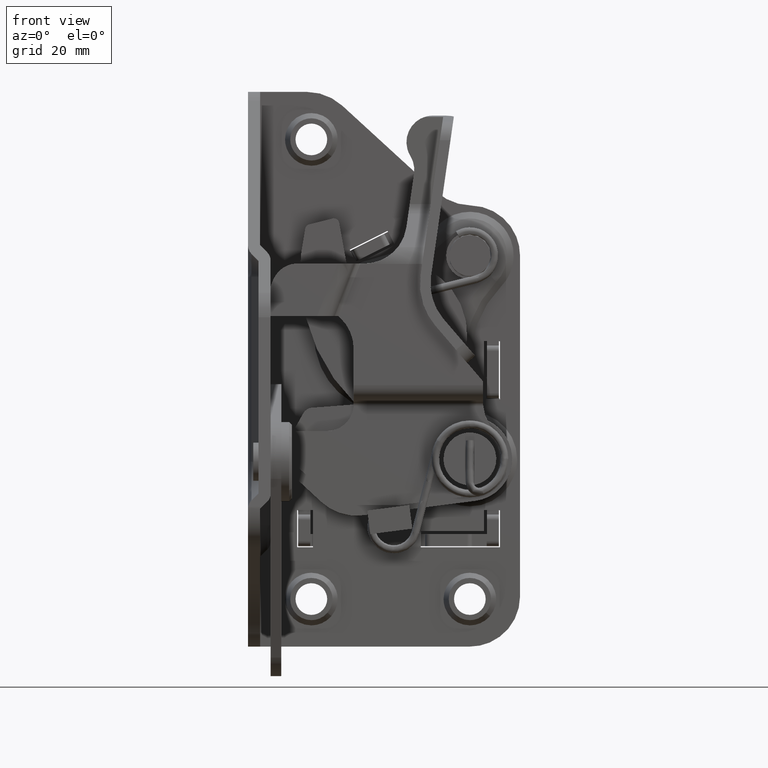
[diagram: clean part render]
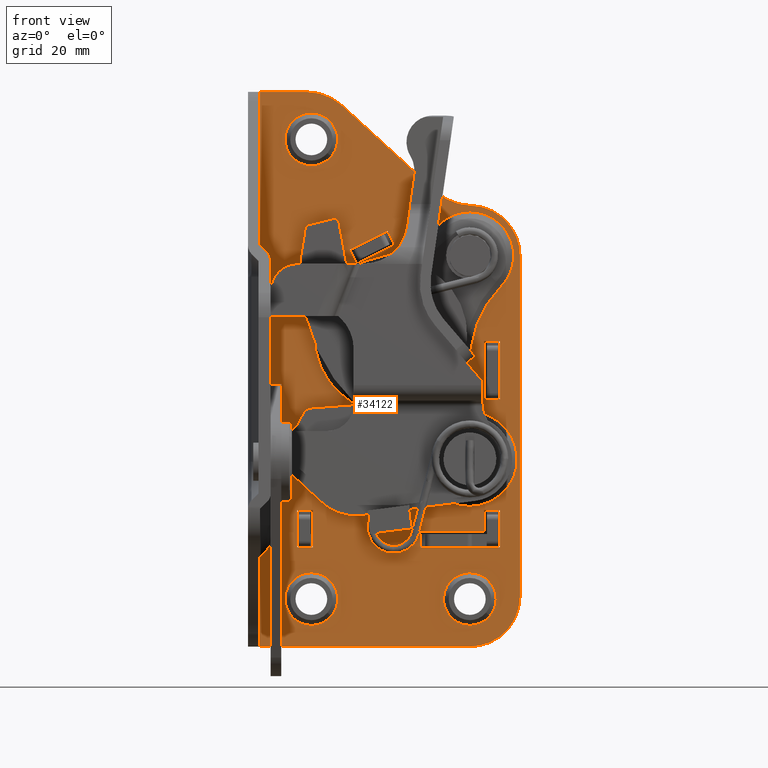
[diagram: same view with one face highlighted and labeled with its STEP entity id]
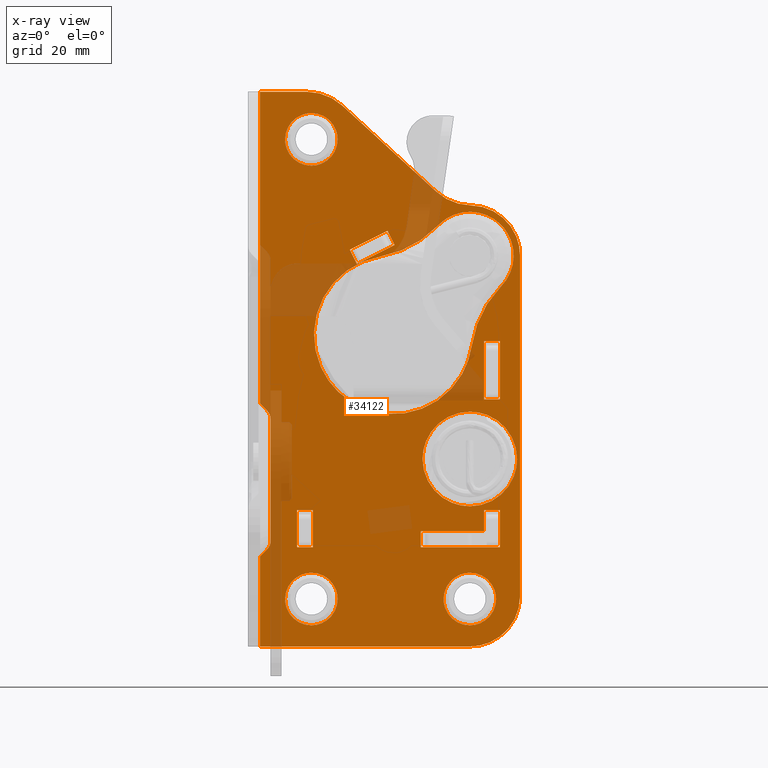
[diagram: x-ray of the same camera — body ghosted, the highlighted face saturated]
A machine part, front view. The second image highlights one B-rep face of the part: STEP entity #34122.
The next image is the same camera in x-ray: the body ghosted, the highlighted face saturated — about 14% of this face is hidden behind the body in this view.
In plain terms, the highlighted face is a freeform B-spline surface patch.
Its self-contained STEP definition (entity closure, byte-faithful):
#26168=CARTESIAN_POINT('',(45.803675712499100,32.700000133929180,-29.216783649812889));
#26169=VERTEX_POINT('',#26168);
#26170=CARTESIAN_POINT('',(42.0,32.700000000000003,-30.981530098638189));
#26171=VERTEX_POINT('',#26170);
#26172=CARTESIAN_POINT('',(45.803675712499100,32.700000133929180,-29.216783649812889));
#26173=CARTESIAN_POINT('',(45.585367185425511,32.700000126242472,-29.474989146325949));
#26174=CARTESIAN_POINT('',(45.112203179805157,32.700000109582056,-29.930926170484430));
#26175=CARTESIAN_POINT('',(44.178236543818812,32.700000076696803,-30.529964767974921));
#26176=CARTESIAN_POINT('',(43.127091933805872,32.700000039685300,-30.900996817832141));
#26177=CARTESIAN_POINT('',(42.338117365075568,32.700000011905367,-30.981558451182750));
#26178=CARTESIAN_POINT('',(42.0,32.700000000000003,-30.981530098638189));
#26179=B_SPLINE_CURVE_WITH_KNOTS('',3,(#26172,#26173,#26174,#26175,#26176,#26177,#26178),.UNSPECIFIED.,.F.,.U.,(4,1,1,1,4),(0.000000044488297,1.014373538515124,1.961129885248130,3.313622247864266,4.327994831061626),.UNSPECIFIED.);
#26180=EDGE_CURVE('',#26169,#26171,#26179,.T.);
#26242=CARTESIAN_POINT('',(45.429058767845873,32.699999864371819,-22.386526022023642));
#26243=VERTEX_POINT('',#26242);
#26249=CARTESIAN_POINT('',(42.0,32.700000000000003,-21.018469901361811));
#26250=VERTEX_POINT('',#26249);
#26251=CARTESIAN_POINT('',(42.0,32.700000000000003,-21.018469901361811));
#26252=CARTESIAN_POINT('',(42.433379419718513,32.699999982858671,-21.018329021031981));
#26253=CARTESIAN_POINT('',(43.240921774145193,32.699999950918397,-21.124550071019470));
#26254=CARTESIAN_POINT('',(44.422123737876497,32.699999904198663,-21.587641122557020));
#26255=CARTESIAN_POINT('',(45.100502955687062,32.699999877367127,-22.074545540828201));
#26256=CARTESIAN_POINT('',(45.429058767845873,32.699999864371819,-22.386526022023642));
#26257=B_SPLINE_CURVE_WITH_KNOTS('',3,(#26251,#26252,#26253,#26254,#26255,#26256),.UNSPECIFIED.,.F.,.U.,(4,1,1,4),(0.000000033462431,1.300095591702509,2.422892436445387,3.782090463981278),.UNSPECIFIED.);
#26258=EDGE_CURVE('',#26250,#26243,#26257,.T.);
#26260=CARTESIAN_POINT('',(37.018469901361982,32.700000000000003,-25.999998745401211));
#26261=VERTEX_POINT('',#26260);
#26262=CARTESIAN_POINT('',(37.018469901361982,32.700000000000003,-25.999998745401211));
#26263=CARTESIAN_POINT('',(37.018453731910398,32.700000000000017,-25.714722245184198));
#26264=CARTESIAN_POINT('',(37.071115431025142,32.699999999999953,-25.103405105511531));
#26265=CARTESIAN_POINT('',(37.349525077328842,32.700000000000088,-24.096902972908701));
#26266=CARTESIAN_POINT('',(37.829599279495604,32.700000000000017,-23.211924797194708));
#26267=CARTESIAN_POINT('',(38.513731015672640,32.699999999999832,-22.398939758205358));
#26268=CARTESIAN_POINT('',(39.374338448923183,32.700000000000372,-21.701238389639190));
#26269=CARTESIAN_POINT('',(40.594011967555922,32.699999999999513,-21.151686047796701));
#26270=CARTESIAN_POINT('',(41.531304386877693,32.700000000000472,-21.018310579308341));
#26271=CARTESIAN_POINT('',(42.0,32.700000000000003,-21.018469901361811));
#26272=B_SPLINE_CURVE_WITH_KNOTS('',3,(#26262,#26263,#26264,#26265,#26266,#26267,#26268,#26269,#26270,#26271),.UNSPECIFIED.,.F.,.U.,(4,1,1,1,1,1,1,4),(0.000000144365693,0.855834299658311,1.833987448148084,3.117787964375352,3.851419004544336,5.012897000612857,6.418963985169182,7.825017572012698),.UNSPECIFIED.);
#26273=EDGE_CURVE('',#26261,#26250,#26272,.T.);
#26275=CARTESIAN_POINT('',(42.0,32.700000000000003,-30.981530098638189));
#26276=CARTESIAN_POINT('',(41.653590521918247,32.699999999999932,-30.981556772521770));
#26277=CARTESIAN_POINT('',(40.858853240219297,32.700000000000173,-30.898401711259680));
#26278=CARTESIAN_POINT('',(39.716479735800263,32.699999999999811,-30.489737856814049));
#26279=CARTESIAN_POINT('',(38.717672040792209,32.700000000000223,-29.804321618009471));
#26280=CARTESIAN_POINT('',(37.914216680359608,32.699999999999953,-28.928742482919141));
#26281=CARTESIAN_POINT('',(37.353170088414863,32.700000000000067,-27.924154854828821));
#26282=CARTESIAN_POINT('',(37.068940477822160,32.700000000000053,-26.896610863818790));
#26283=CARTESIAN_POINT('',(37.018463410206230,32.700000000000003,-26.264903588204820));
#26284=CARTESIAN_POINT('',(37.018469901361982,32.700000000000003,-25.999998745401211));
#26285=B_SPLINE_CURVE_WITH_KNOTS('',3,(#26275,#26276,#26277,#26278,#26279,#26280,#26281,#26282,#26283,#26284),.UNSPECIFIED.,.F.,.U.,(4,1,1,1,1,1,1,4),(0.000000143939944,1.039242002116160,2.384196129396056,3.606862696073036,4.646074926225090,5.929898098263977,7.030292976566042,7.825018986246805),.UNSPECIFIED.);
#26286=EDGE_CURVE('',#26171,#26261,#26285,.T.);
#26305=CARTESIAN_POINT('',(46.981530098638039,32.700000000000003,-26.000001254598779));
#26306=VERTEX_POINT('',#26305);
#26307=CARTESIAN_POINT('',(46.981530098638039,32.700000000000003,-26.000001254598779));
#26308=CARTESIAN_POINT('',(46.981930035082272,32.700000023510412,-26.564685663894839));
#26309=CARTESIAN_POINT('',(46.781042082226001,32.700000072028232,-27.730020028910729));
#26310=CARTESIAN_POINT('',(46.192251675813097,32.700000114834367,-28.758147878848501));
#26311=CARTESIAN_POINT('',(45.803675712499100,32.700000133929180,-29.216783649812889));
#26312=B_SPLINE_CURVE_WITH_KNOTS('',3,(#26307,#26308,#26309,#26310,#26311),.UNSPECIFIED.,.F.,.U.,(4,1,4),(0.000000028836222,1.693892764226169,3.497024157840460),.UNSPECIFIED.);
#26313=EDGE_CURVE('',#26306,#26169,#26312,.T.);
#26315=CARTESIAN_POINT('',(45.429058767845873,32.699999864371819,-22.386526022023642));
#26316=CARTESIAN_POINT('',(45.857156002656893,32.699999879593499,-22.792070452302291));
#26317=CARTESIAN_POINT('',(46.363295258018887,32.699999905480517,-23.481765881191880));
#26318=CARTESIAN_POINT('',(46.865120722946088,32.699999952584839,-24.736739997920370));
#26319=CARTESIAN_POINT('',(46.981797628276887,32.699999981030217,-25.494599361561988));
#26320=CARTESIAN_POINT('',(46.981530098638039,32.700000000000003,-26.000001254598779));
#26321=B_SPLINE_CURVE_WITH_KNOTS('',3,(#26315,#26316,#26317,#26318,#26319,#26320),.UNSPECIFIED.,.F.,.U.,(4,1,1,4),(0.000000041197973,1.768800925075114,2.526829929305881,4.042928925841842),.UNSPECIFIED.);
#26322=EDGE_CURVE('',#26243,#26306,#26321,.T.);
#26374=CARTESIAN_POINT('',(15.803675712498791,32.700000133929180,-29.216783649812889));
#26375=VERTEX_POINT('',#26374);
#26376=CARTESIAN_POINT('',(11.999999999999700,32.700000000000003,-30.981530098638189));
#26377=VERTEX_POINT('',#26376);
#26378=CARTESIAN_POINT('',(15.803675712498791,32.700000133929180,-29.216783649812889));
#26379=CARTESIAN_POINT('',(15.483605854358210,32.700000122659418,-29.595608534268809));
#26380=CARTESIAN_POINT('',(14.831880446095600,32.700000099711822,-30.166077240277890));
#26381=CARTESIAN_POINT('',(13.532540432128879,32.700000053961467,-30.812415234538491));
#26382=CARTESIAN_POINT('',(12.586153659762291,32.700000020638832,-30.981984851955101));
#26383=CARTESIAN_POINT('',(11.999999999999700,32.700000000000003,-30.981530098638189));
#26384=B_SPLINE_CURVE_WITH_KNOTS('',3,(#26378,#26379,#26380,#26381,#26382,#26383),.UNSPECIFIED.,.F.,.U.,(4,1,1,4),(0.000000044489448,1.487750059900769,2.569739183424362,4.327994831061585),.UNSPECIFIED.);
#26385=EDGE_CURVE('',#26375,#26377,#26384,.T.);
#26445=CARTESIAN_POINT('',(15.429058767845561,32.699999864371819,-22.386526022023642));
#26446=VERTEX_POINT('',#26445);
#26452=CARTESIAN_POINT('',(11.999999999999700,32.700000000000003,-21.018469901361811));
#26453=VERTEX_POINT('',#26452);
#26454=CARTESIAN_POINT('',(11.999999999999700,32.700000000000003,-21.018469901361811));
#26455=CARTESIAN_POINT('',(12.433373752879170,32.699999982858998,-21.018336322764689));
#26456=CARTESIAN_POINT('',(13.201537086107370,32.699999952475942,-21.119373145146849));
#26457=CARTESIAN_POINT('',(14.386622389682209,32.699999905603143,-21.567891071315341));
#26458=CARTESIAN_POINT('',(15.071984910617161,32.699999878494758,-22.047343919965559));
#26459=CARTESIAN_POINT('',(15.429058767845561,32.699999864371819,-22.386526022023642));
#26460=B_SPLINE_CURVE_WITH_KNOTS('',3,(#26454,#26455,#26456,#26457,#26458,#26459),.UNSPECIFIED.,.F.,.U.,(4,1,1,4),(0.000000033462609,1.300095591702602,2.304704259591208,3.782090463981276),.UNSPECIFIED.);
#26461=EDGE_CURVE('',#26453,#26446,#26460,.T.);
#26463=CARTESIAN_POINT('',(7.018469901361669,32.700000000000003,-25.999998745401211));
#26464=VERTEX_POINT('',#26463);
#26465=CARTESIAN_POINT('',(7.018469901361669,32.700000000000003,-25.999998745401211));
#26466=CARTESIAN_POINT('',(7.018359724292156,32.700000000000017,-25.592439075799881));
#26467=CARTESIAN_POINT('',(7.103996448899220,32.699999999999903,-24.899659566043109));
#26468=CARTESIAN_POINT('',(7.416745290640604,32.700000000000152,-23.990670239616438));
#26469=CARTESIAN_POINT('',(7.894223081297970,32.699999999999612,-23.110086673535179));
#26470=CARTESIAN_POINT('',(8.606102111681272,32.700000000000841,-22.284845092908419));
#26471=CARTESIAN_POINT('',(9.511336197302112,32.699999999998759,-21.647462836563161));
#26472=CARTESIAN_POINT('',(10.614524614063759,32.700000000000827,-21.158322240589278));
#26473=CARTESIAN_POINT('',(11.449760685789769,32.699999999999562,-21.018155759461070));
#26474=CARTESIAN_POINT('',(11.999999999999700,32.700000000000003,-21.018469901361811));
#26475=B_SPLINE_CURVE_WITH_KNOTS('',3,(#26465,#26466,#26467,#26468,#26469,#26470,#26471,#26472,#26473,#26474),.UNSPECIFIED.,.F.,.U.,(4,1,1,1,1,1,1,4),(0.000000144368264,1.222652087379938,2.078523668821425,2.873272494625561,4.218157759474492,5.318562443777475,6.174436009217033,7.825017572012708),.UNSPECIFIED.);
#26476=EDGE_CURVE('',#26464,#26453,#26475,.T.);
#26478=CARTESIAN_POINT('',(11.999999999999700,32.700000000000003,-30.981530098638189));
#26479=CARTESIAN_POINT('',(11.612827861504501,32.699999999999910,-30.981607409416331));
#26480=CARTESIAN_POINT('',(10.940407528498890,32.700000000000188,-30.902726478687729));
#26481=CARTESIAN_POINT('',(9.949939529242961,32.699999999999953,-30.575542235035719));
#26482=CARTESIAN_POINT('',(9.182873871737785,32.700000000000003,-30.141010304889551));
#26483=CARTESIAN_POINT('',(8.491731360564989,32.700000000000180,-29.566617155777891));
#26484=CARTESIAN_POINT('',(7.953274500503800,32.699999999999953,-28.950103199105889));
#26485=CARTESIAN_POINT('',(7.501149058970652,32.700000000000031,-28.195759339964329));
#26486=CARTESIAN_POINT('',(7.125705098864302,32.700000000000010,-27.222559048872149));
#26487=CARTESIAN_POINT('',(7.018281367058362,32.700000000000060,-26.468705351504170));
#26488=CARTESIAN_POINT('',(7.018469901361669,32.700000000000003,-25.999998745401211));
#26489=B_SPLINE_CURVE_WITH_KNOTS('',3,(#26478,#26479,#26480,#26481,#26482,#26483,#26484,#26485,#26486,#26487,#26488),.UNSPECIFIED.,.F.,.U.,(4,1,1,1,1,1,1,1,4),(0.000000143930279,1.161506399609530,2.017388230116644,3.117788528373086,3.790277319667224,4.707235575443102,5.563091425792234,6.418965145808880,7.825018986246803),.UNSPECIFIED.);
#26490=EDGE_CURVE('',#26377,#26464,#26489,.T.);
#26509=CARTESIAN_POINT('',(16.981530098637730,32.700000000000003,-26.000001254598779));
#26510=VERTEX_POINT('',#26509);
#26511=CARTESIAN_POINT('',(16.981530098637730,32.700000000000003,-26.000001254598779));
#26512=CARTESIAN_POINT('',(16.981622910261390,32.700000016683212,-26.400707880549870));
#26513=CARTESIAN_POINT('',(16.882126850954240,32.700000050806253,-27.220291784480949));
#26514=CARTESIAN_POINT('',(16.460093975252288,32.700000096459782,-28.316824335563830));
#26515=CARTESIAN_POINT('',(16.027161232596651,32.700000122928877,-28.952571847392200));
#26516=CARTESIAN_POINT('',(15.803675712498791,32.700000133929180,-29.216783649812889));
#26517=B_SPLINE_CURVE_WITH_KNOTS('',3,(#26511,#26512,#26513,#26514,#26515,#26516),.UNSPECIFIED.,.F.,.U.,(4,1,1,4),(0.000000028835064,1.202109432815635,2.458843423872564,3.497024157840481),.UNSPECIFIED.);
#26518=EDGE_CURVE('',#26510,#26375,#26517,.T.);
#26520=CARTESIAN_POINT('',(15.429058767845561,32.699999864371819,-22.386526022023642));
#26521=CARTESIAN_POINT('',(15.734639232285250,32.699999875249397,-22.676333764391210));
#26522=CARTESIAN_POINT('',(16.190929224647618,32.699999896235873,-23.235463329357710));
#26523=CARTESIAN_POINT('',(16.611492298993081,32.699999927375607,-24.065105913496161));
#26524=CARTESIAN_POINT('',(16.900922565538419,32.699999960484568,-24.947208933395000));
#26525=CARTESIAN_POINT('',(16.981647998853330,32.699999984192402,-25.578848319185258));
#26526=CARTESIAN_POINT('',(16.981530098637730,32.700000000000003,-26.000001254598779));
#26527=B_SPLINE_CURVE_WITH_KNOTS('',3,(#26520,#26521,#26522,#26523,#26524,#26525,#26526),.UNSPECIFIED.,.F.,.U.,(4,1,1,1,4),(0.000000041196127,1.263421896601126,2.147789031464082,2.779507070403738,4.042928925841798),.UNSPECIFIED.);
#26528=EDGE_CURVE('',#26446,#26510,#26527,.T.);
#26582=CARTESIAN_POINT('',(15.803675712498800,32.700000133929180,57.783216350187097));
#26583=VERTEX_POINT('',#26582);
#26584=CARTESIAN_POINT('',(11.999999999999700,32.700000000000003,56.018469901361797));
#26585=VERTEX_POINT('',#26584);
#26586=CARTESIAN_POINT('',(15.803675712498800,32.700000133929180,57.783216350187097));
#26587=CARTESIAN_POINT('',(15.585360792732770,32.700000126242209,57.525022273789283));
#26588=CARTESIAN_POINT('',(15.046989217703301,32.700000107285859,57.006110393254943));
#26589=CARTESIAN_POINT('',(14.133166192209940,32.700000075109919,56.454576742197453));
#26590=CARTESIAN_POINT('',(13.081968581205111,32.700000038096547,56.099505087354437));
#26591=CARTESIAN_POINT('',(12.383208176818220,32.700000013492946,56.018402460610041));
#26592=CARTESIAN_POINT('',(11.999999999999700,32.700000000000003,56.018469901361797));
#26593=B_SPLINE_CURVE_WITH_KNOTS('',3,(#26586,#26587,#26588,#26589,#26590,#26591,#26592),.UNSPECIFIED.,.F.,.U.,(4,1,1,1,4),(0.000000044486766,1.014373538513840,2.231601247336667,3.178370043205631,4.327994831061635),.UNSPECIFIED.);
#26594=EDGE_CURVE('',#26583,#26585,#26593,.T.);
#26656=CARTESIAN_POINT('',(15.429058767845561,32.699999864371819,64.613473977976355));
#26657=VERTEX_POINT('',#26656);
#26663=CARTESIAN_POINT('',(11.999999999999700,32.700000000000003,65.981530098638189));
#26664=VERTEX_POINT('',#26663);
#26665=CARTESIAN_POINT('',(11.999999999999700,32.700000000000003,65.981530098638189));
#26666=CARTESIAN_POINT('',(12.433377738699720,32.699999982858770,65.981673637271072));
#26667=CARTESIAN_POINT('',(13.162125200840610,32.699999954035000,65.885765200351855));
#26668=CARTESIAN_POINT('',(14.351173536802721,32.699999907004830,65.451917048968866));
#26669=CARTESIAN_POINT('',(15.043422026701389,32.699999879624961,64.979799053138095));
#26670=CARTESIAN_POINT('',(15.429058767845561,32.699999864371819,64.613473977976355));
#26671=B_SPLINE_CURVE_WITH_KNOTS('',3,(#26665,#26666,#26667,#26668,#26669,#26670),.UNSPECIFIED.,.F.,.U.,(4,1,1,4),(0.000000033466002,1.300095591704739,2.186519639660140,3.782090463981223),.UNSPECIFIED.);
#26672=EDGE_CURVE('',#26664,#26657,#26671,.T.);
#26674=CARTESIAN_POINT('',(7.018469901361669,32.700000000000003,61.000001254598779));
#26675=VERTEX_POINT('',#26674);
#26676=CARTESIAN_POINT('',(7.018469901361669,32.700000000000003,61.000001254598779));
#26677=CARTESIAN_POINT('',(7.018150844921873,32.699999999999953,61.550253224624122));
#26678=CARTESIAN_POINT('',(7.158367773900129,32.700000000000102,62.385434868259090));
#26679=CARTESIAN_POINT('',(7.680527363448568,32.699999999999847,63.563548388125533));
#26680=CARTESIAN_POINT('',(8.293032025969776,32.700000000000209,64.389309427621200));
#26681=CARTESIAN_POINT('',(9.175818635018320,32.700000000000102,65.150832881611379));
#26682=CARTESIAN_POINT('',(10.078848570364570,32.699999999999299,65.640670292119680));
#26683=CARTESIAN_POINT('',(11.083033105616661,32.700000000001083,65.925080335881731));
#26684=CARTESIAN_POINT('',(11.694341510264390,32.699999999999079,65.981562185250624));
#26685=CARTESIAN_POINT('',(11.999999999999700,32.700000000000003,65.981530098638189));
#26686=B_SPLINE_CURVE_WITH_KNOTS('',3,(#26676,#26677,#26678,#26679,#26680,#26681,#26682,#26683,#26684,#26685),.UNSPECIFIED.,.F.,.U.,(4,1,1,1,1,1,1,4),(0.000000144388496,1.650583046908661,2.506458869292059,3.851419004555456,4.707234723206547,5.991031521286375,6.908042534302139,7.825017572012709),.UNSPECIFIED.);
#26687=EDGE_CURVE('',#26675,#26664,#26686,.T.);
#26689=CARTESIAN_POINT('',(11.999999999999700,32.700000000000003,56.018469901361797));
#26690=CARTESIAN_POINT('',(11.694338058454511,32.699999999999818,56.018445098425573));
#26691=CARTESIAN_POINT('',(11.083026424526460,32.700000000000273,56.074911343446857));
#26692=CARTESIAN_POINT('',(10.078853939398330,32.700000000000031,56.359351159981912));
#26693=CARTESIAN_POINT('',(9.013179390813454,32.699999999999989,56.937261569956163));
#26694=CARTESIAN_POINT('',(8.183361883674706,32.700000000000060,57.737119540156698));
#26695=CARTESIAN_POINT('',(7.627284403496834,32.699999999999797,58.569709725142559));
#26696=CARTESIAN_POINT('',(7.167139324266114,32.700000000000159,59.573792061376302));
#26697=CARTESIAN_POINT('',(7.018089875873552,32.699999999999918,60.429369696657922));
#26698=CARTESIAN_POINT('',(7.018469901361669,32.700000000000003,61.000001254598779));
#26699=B_SPLINE_CURVE_WITH_KNOTS('',3,(#26689,#26690,#26691,#26692,#26693,#26694,#26695,#26696,#26697,#26698),.UNSPECIFIED.,.F.,.U.,(4,1,1,1,1,1,1,4),(0.000000143937712,0.916988639924436,1.833987779271914,3.117788528376957,4.523818663656565,5.257418708203504,6.113298129996971,7.825018986246801),.UNSPECIFIED.);
#26700=EDGE_CURVE('',#26585,#26675,#26699,.T.);
#26719=CARTESIAN_POINT('',(16.981530098637730,32.700000000000003,60.999998745401207));
#26720=VERTEX_POINT('',#26719);
#26721=CARTESIAN_POINT('',(16.981530098637730,32.700000000000003,60.999998745401207));
#26722=CARTESIAN_POINT('',(16.981591262603679,32.700000015166609,60.635721118803943));
#26723=CARTESIAN_POINT('',(16.901283318700081,32.700000045497887,59.907203211054821));
#26724=CARTESIAN_POINT('',(16.522331463869211,32.700000091703572,58.797415766066521));
#26725=CARTESIAN_POINT('',(16.086063110121842,32.700000120035860,58.116911480650543));
#26726=CARTESIAN_POINT('',(15.803675712498800,32.700000133929180,57.783216350187097));
#26727=B_SPLINE_CURVE_WITH_KNOTS('',3,(#26721,#26722,#26723,#26724,#26725,#26726),.UNSPECIFIED.,.F.,.U.,(4,1,1,4),(0.000000028835788,1.092825392159555,2.185631479342040,3.497024157840480),.UNSPECIFIED.);
#26728=EDGE_CURVE('',#26720,#26583,#26727,.T.);
#26730=CARTESIAN_POINT('',(15.429058767845561,32.699999864371819,64.613473977976355));
#26731=CARTESIAN_POINT('',(15.811137823019820,32.699999877965773,64.251296497809221));
#26732=CARTESIAN_POINT('',(16.380797328016168,32.699999905943613,63.505896832055207));
#26733=CARTESIAN_POINT('',(16.876792982788849,32.699999953371382,62.242303323532710));
#26734=CARTESIAN_POINT('',(16.981625642896191,32.699999984192651,61.421144303731253));
#26735=CARTESIAN_POINT('',(16.981530098637730,32.700000000000003,60.999998745401207));
#26736=B_SPLINE_CURVE_WITH_KNOTS('',3,(#26730,#26731,#26732,#26733,#26734,#26735),.UNSPECIFIED.,.F.,.U.,(4,1,1,4),(0.000000041200985,1.579282914204785,2.779507070404653,4.042928925841799),.UNSPECIFIED.);
#26737=EDGE_CURVE('',#26657,#26720,#26736,.T.);
#26803=CARTESIAN_POINT('',(36.058206221423212,32.699999883143470,7.197110527336118));
#26804=VERTEX_POINT('',#26803);
#26810=CARTESIAN_POINT('',(33.047000000000061,32.700000000000003,0.499999058446561));
#26811=VERTEX_POINT('',#26810);
#26812=CARTESIAN_POINT('',(36.058206221423212,32.699999883143470,7.197110527336118));
#26813=CARTESIAN_POINT('',(35.674973441078947,32.699999889075251,6.857153561342829));
#26814=CARTESIAN_POINT('',(34.994348422620668,32.699999901590900,6.139885762453077));
#26815=CARTESIAN_POINT('',(34.131192035731722,32.699999923880007,4.862474106711806));
#26816=CARTESIAN_POINT('',(33.546964079551628,32.699999946553007,3.563064905744879));
#26817=CARTESIAN_POINT('',(33.144942456077182,32.699999972496890,2.076238926648626));
#26818=CARTESIAN_POINT('',(33.046918911154449,32.699999989685658,1.091105384132361));
#26819=CARTESIAN_POINT('',(33.047000000000061,32.700000000000003,0.499999058446561));
#26820=B_SPLINE_CURVE_WITH_KNOTS('',3,(#26812,#26813,#26814,#26815,#26816,#26817,#26818,#26819),.UNSPECIFIED.,.F.,.U.,(4,1,1,1,1,4),(0.000000024566722,1.536865973150703,2.955527839549237,4.610604600457920,5.792820687200086,7.566132415463979),.UNSPECIFIED.);
#26821=EDGE_CURVE('',#26804,#26811,#26820,.T.);
#26823=CARTESIAN_POINT('',(35.302888948173234,32.700000116856472,-5.441794243914066));
#26824=VERTEX_POINT('',#26823);
#26825=CARTESIAN_POINT('',(33.047000000000061,32.700000000000003,0.499999058446561));
#26826=CARTESIAN_POINT('',(33.046898250960972,32.700000011979668,-0.109129987611610));
#26827=CARTESIAN_POINT('',(33.147569265287991,32.700000031279153,-1.090448093556359));
#26828=CARTESIAN_POINT('',(33.504734195491046,32.700000057010293,-2.398799716797465));
#26829=CARTESIAN_POINT('',(34.099309487130760,32.700000085368231,-3.840715200812121));
#26830=CARTESIAN_POINT('',(34.763672112740537,32.700000104911410,-4.834422696828148));
#26831=CARTESIAN_POINT('',(35.302888948173234,32.700000116856472,-5.441794243914066));
#26832=B_SPLINE_CURVE_WITH_KNOTS('',3,(#26825,#26826,#26827,#26828,#26829,#26830,#26831),.UNSPECIFIED.,.F.,.U.,(4,1,1,1,4),(0.000000024520316,1.827367687496933,2.944101860561415,4.060809970177435,6.497296847635356),.UNSPECIFIED.);
#26833=EDGE_CURVE('',#26811,#26824,#26832,.T.);
#26878=CARTESIAN_POINT('',(42.0,32.700000000000003,-8.452999999999999));
#26879=VERTEX_POINT('',#26878);
#26880=CARTESIAN_POINT('',(35.302888948173234,32.700000116856472,-5.441794243914066));
#26881=CARTESIAN_POINT('',(35.616703254439393,32.700000111380803,-5.795536428032672));
#26882=CARTESIAN_POINT('',(36.329053632510671,32.700000098951172,-6.480533192393399));
#26883=CARTESIAN_POINT('',(37.699277195075517,32.700000075042389,-7.419705739593663));
#26884=CARTESIAN_POINT('',(39.596351579234977,32.700000041940832,-8.227998588796615));
#26885=CARTESIAN_POINT('',(41.133020873440401,32.700000015127713,-8.453336863849845));
#26886=CARTESIAN_POINT('',(42.0,32.700000000000003,-8.452999999999999));
#26887=B_SPLINE_CURVE_WITH_KNOTS('',3,(#26880,#26881,#26882,#26883,#26884,#26885,#26886),.UNSPECIFIED.,.F.,.U.,(4,1,1,1,4),(0.000000024551198,1.418642910815644,2.955527587490276,4.965266437230817,7.566131770164478),.UNSPECIFIED.);
#26888=EDGE_CURVE('',#26824,#26879,#26887,.T.);
#26890=CARTESIAN_POINT('',(50.952999999999953,32.700000000000003,0.500000941553445));
#26891=VERTEX_POINT('',#26890);
#26892=CARTESIAN_POINT('',(42.0,32.700000000000003,-8.452999999999999));
#26893=CARTESIAN_POINT('',(42.585977210510023,32.700000000000017,-8.453071176617190));
#26894=CARTESIAN_POINT('',(43.538147943711458,32.699999999999953,-8.359168736530526));
#26895=CARTESIAN_POINT('',(44.886413367293997,32.700000000000017,-8.003786160142241));
#26896=CARTESIAN_POINT('',(46.175684376779820,32.700000000000017,-7.469819089284344));
#26897=CARTESIAN_POINT('',(47.543706416155622,32.700000000000003,-6.603581254457767));
#26898=CARTESIAN_POINT('',(48.743010441484678,32.700000000000138,-5.461664446251858));
#26899=CARTESIAN_POINT('',(49.784893029114059,32.699999999999910,-4.038794319451052));
#26900=CARTESIAN_POINT('',(50.454010083699167,32.700000000000060,-2.601401060160188));
#26901=CARTESIAN_POINT('',(50.865058221242357,32.700000000000031,-1.001517256128895));
#26902=CARTESIAN_POINT('',(50.953057274112702,32.699999999999982,-0.049343985682003));
#26903=CARTESIAN_POINT('',(50.952999999999953,32.700000000000003,0.500000941553445));
#26904=B_SPLINE_CURVE_WITH_KNOTS('',3,(#26892,#26893,#26894,#26895,#26896,#26897,#26898,#26899,#26900,#26901,#26902,#26903),.UNSPECIFIED.,.F.,.U.,(4,1,1,1,1,1,1,1,1,4),(0.000000091186566,1.757923314793382,2.856632745474443,4.175088281796310,5.933036807035915,7.690932179709000,9.119233490671682,11.206800155714420,12.415393610661850,14.063428285961770),.UNSPECIFIED.);
#26905=EDGE_CURVE('',#26879,#26891,#26904,.T.);
#26907=CARTESIAN_POINT('',(42.0,32.700000000000003,9.452999999999999));
#26908=VERTEX_POINT('',#26907);
#26909=CARTESIAN_POINT('',(50.952999999999953,32.700000000000003,0.500000941553445));
#26910=CARTESIAN_POINT('',(50.953326690847447,32.700000000000173,1.342360461836403));
#26911=CARTESIAN_POINT('',(50.744688329790939,32.699999999999712,2.807131952090734));
#26912=CARTESIAN_POINT('',(50.050468612333859,32.700000000000330,4.512383725218765));
#26913=CARTESIAN_POINT('',(49.242003510269882,32.699999999999442,5.824375527919211));
#26914=CARTESIAN_POINT('',(48.216473522961827,32.700000000000422,7.028265947866586));
#26915=CARTESIAN_POINT('',(46.909304668578869,32.699999999999562,8.048370450521881));
#26916=CARTESIAN_POINT('',(45.344615824235952,32.700000000000131,8.860176579769956));
#26917=CARTESIAN_POINT('',(43.757919431879657,32.700000000000337,9.341481058843705));
#26918=CARTESIAN_POINT('',(42.549340180837739,32.699999999999733,9.453044739347904));
#26919=CARTESIAN_POINT('',(42.0,32.700000000000003,9.452999999999999));
#26920=B_SPLINE_CURVE_WITH_KNOTS('',3,(#26909,#26910,#26911,#26912,#26913,#26914,#26915,#26916,#26917,#26918,#26919),.UNSPECIFIED.,.F.,.U.,(4,1,1,1,1,1,1,1,4),(0.000000091510419,2.527008721643561,4.394832913657757,5.493554554955811,7.141557778061511,9.119232802379845,10.437699123698250,12.415392673430640,14.063427224604970),.UNSPECIFIED.);
#26921=EDGE_CURVE('',#26891,#26908,#26920,.T.);
#26923=CARTESIAN_POINT('',(42.0,32.700000000000003,9.452999999999999));
#26924=CARTESIAN_POINT('',(41.323184538511661,32.699999986689157,9.453142098992551));
#26925=CARTESIAN_POINT('',(40.274220854816100,32.699999966059337,9.333435091744708));
#26926=CARTESIAN_POINT('',(38.746782482972279,32.699999936019360,8.879062408454237));
#26927=CARTESIAN_POINT('',(37.395527155097660,32.699999909444323,8.239226239366500));
#26928=CARTESIAN_POINT('',(36.488489129315759,32.699999891605849,7.578958274232511));
#26929=CARTESIAN_POINT('',(36.058206221423212,32.699999883143470,7.197110527336118));
#26930=B_SPLINE_CURVE_WITH_KNOTS('',3,(#26923,#26924,#26925,#26926,#26927,#26928,#26929),.UNSPECIFIED.,.F.,.U.,(4,1,1,1,4),(0.000000024512190,2.030405675401320,3.147144800938476,4.771452021731867,6.497297534782923),.UNSPECIFIED.);
#26931=EDGE_CURVE('',#26908,#26804,#26930,.T.);
#29934=CARTESIAN_POINT('',(3.626345596728865,32.700000000000003,-16.626345596729202));
#29935=VERTEX_POINT('',#29934);
#29941=CARTESIAN_POINT('',(4.299999999999884,32.700000000000003,-15.0));
#29942=VERTEX_POINT('',#29941);
#29943=CARTESIAN_POINT('',(3.626345596728865,32.700000000000003,-16.626345596729202));
#29944=CARTESIAN_POINT('',(3.826134778906780,32.700000000000053,-16.426910175155410));
#29945=CARTESIAN_POINT('',(4.172145338239445,32.699999999999967,-15.921680972626760));
#29946=CARTESIAN_POINT('',(4.300434315760519,32.699999999999989,-15.319953653610760));
#29947=CARTESIAN_POINT('',(4.299999999999884,32.700000000000003,-15.0));
#29948=B_SPLINE_CURVE_WITH_KNOTS('',3,(#29943,#29944,#29945,#29946,#29947),.UNSPECIFIED.,.F.,.U.,(4,1,4),(0.000000057516347,0.846792599063643,1.806461105560836),.UNSPECIFIED.);
#29949=EDGE_CURVE('',#29935,#29942,#29948,.T.);
#30129=CARTESIAN_POINT('',(4.299999999999884,32.700000000000003,8.000000000000119));
#30130=VERTEX_POINT('',#30129);
#30131=CARTESIAN_POINT('',(3.626345596728920,32.700000000000003,9.626345596729150));
#30132=VERTEX_POINT('',#30131);
#30133=CARTESIAN_POINT('',(4.299999999999884,32.700000000000003,8.000000000000119));
#30134=CARTESIAN_POINT('',(4.300393935925859,32.700000000000010,8.319945970798397));
#30135=CARTESIAN_POINT('',(4.172192124406094,32.699999999999967,8.921691857204259));
#30136=CARTESIAN_POINT('',(3.826123852482332,32.699999999999953,9.426909604986884));
#30137=CARTESIAN_POINT('',(3.626345596728920,32.700000000000003,9.626345596729150));
#30138=B_SPLINE_CURVE_WITH_KNOTS('',3,(#30133,#30134,#30135,#30136,#30137),.UNSPECIFIED.,.F.,.U.,(4,1,4),(0.000000057516293,0.959668564013448,1.806461105560663),.UNSPECIFIED.);
#30139=EDGE_CURVE('',#30130,#30132,#30138,.T.);
#31076=CARTESIAN_POINT('',(42.354673795505853,32.700000000000003,21.917053426248799));
#31077=VERTEX_POINT('',#31076);
#31083=CARTESIAN_POINT('',(47.912915754050402,32.700000000000003,33.175274488398749));
#31084=VERTEX_POINT('',#31083);
#31085=CARTESIAN_POINT('',(47.912915754050402,32.700000000000003,33.175274488398749));
#31086=CARTESIAN_POINT('',(47.119301720304023,32.699999999999982,32.369737978654030));
#31087=CARTESIAN_POINT('',(45.541171245647007,32.700000000000017,30.469564982555749));
#31088=CARTESIAN_POINT('',(43.913861157413983,32.700000000000017,27.550005622174190));
#31089=CARTESIAN_POINT('',(42.857850698259803,32.699999999999967,24.600395708554910));
#31090=CARTESIAN_POINT('',(42.483945858926383,32.700000000000003,22.839288770372619));
#31091=CARTESIAN_POINT('',(42.354673795505853,32.700000000000003,21.917053426248799));
#31092=B_SPLINE_CURVE_WITH_KNOTS('',3,(#31085,#31086,#31087,#31088,#31089,#31090,#31091),.UNSPECIFIED.,.F.,.U.,(4,1,1,1,4),(4.853915E-009,3.392426764866396,7.383506754118067,9.977724456011389,12.771483875669730),.UNSPECIFIED.);
#31093=EDGE_CURVE('',#31084,#31077,#31092,.T.);
#31123=CARTESIAN_POINT('',(47.768683403834039,32.700000000000003,44.967603521207643));
#31124=VERTEX_POINT('',#31123);
#31125=CARTESIAN_POINT('',(47.912915754050402,32.700000000000003,33.175274488398749));
#31126=CARTESIAN_POINT('',(48.296475001469432,32.700000000000010,33.564550972384843));
#31127=CARTESIAN_POINT('',(48.964720351914863,32.700000000000003,34.392535392945312));
#31128=CARTESIAN_POINT('',(49.655983256213133,32.700000000000031,35.695545960014179));
#31129=CARTESIAN_POINT('',(50.142474853942211,32.700000000000010,37.158040460676730));
#31130=CARTESIAN_POINT('',(50.352047572385061,32.700000000000053,38.690275319801898));
#31131=CARTESIAN_POINT('',(50.242755902413933,32.699999999999939,40.298801765715467));
#31132=CARTESIAN_POINT('',(49.840831047244293,32.700000000000273,41.894587549969827));
#31133=CARTESIAN_POINT('',(49.062157498417982,32.699999999999569,43.504527513216381));
#31134=CARTESIAN_POINT('',(48.235363583334319,32.700000000000237,44.516636500556267));
#31135=CARTESIAN_POINT('',(47.768683403834039,32.700000000000003,44.967603521207643));
#31136=B_SPLINE_CURVE_WITH_KNOTS('',3,(#31125,#31126,#31127,#31128,#31129,#31130,#31131,#31132,#31133,#31134,#31135),.UNSPECIFIED.,.F.,.U.,(4,1,1,1,1,1,1,1,4),(0.000000106444942,1.639473954732802,3.176530018365821,4.406173376153154,6.250635524843504,7.787590789597310,9.222176103662319,11.169095104607729,13.115996792871460),.UNSPECIFIED.);
#31137=EDGE_CURVE('',#31084,#31124,#31136,.T.);
#31139=CARTESIAN_POINT('',(35.978239850846798,32.700000000000003,44.712127861495603));
#31140=VERTEX_POINT('',#31139);
#31141=CARTESIAN_POINT('',(47.768683403834039,32.700000000000003,44.967603521207643));
#31142=CARTESIAN_POINT('',(47.375805775860222,32.700000000000053,45.347473277129843));
#31143=CARTESIAN_POINT('',(46.541549286201722,32.699999999999953,46.007858209336668));
#31144=CARTESIAN_POINT('',(44.958037805474483,32.700000000000017,46.829079262319340));
#31145=CARTESIAN_POINT('',(43.325391383578513,32.700000000000088,47.256631862024363));
#31146=CARTESIAN_POINT('',(41.648095411086182,32.699999999999960,47.334049179626327));
#31147=CARTESIAN_POINT('',(40.184900966767103,32.699999999999989,47.147857991401843));
#31148=CARTESIAN_POINT('',(38.650358886758553,32.700000000000173,46.653322273600537));
#31149=CARTESIAN_POINT('',(37.211074600398980,32.699999999999463,45.849502173949098));
#31150=CARTESIAN_POINT('',(36.354292844228517,32.700000000000813,45.108657664756933));
#31151=CARTESIAN_POINT('',(35.978239850846798,32.700000000000003,44.712127861495603));
#31152=B_SPLINE_CURVE_WITH_KNOTS('',3,(#31141,#31142,#31143,#31144,#31145,#31146,#31147,#31148,#31149,#31150,#31151),.UNSPECIFIED.,.F.,.U.,(4,1,1,1,1,1,1,1,4),(0.000000106441352,1.639473954729855,3.176530018362762,5.328405983196288,6.660436352683937,8.197473253990793,9.734527979736043,11.476521984516181,13.115996792872000),.UNSPECIFIED.);
#31153=EDGE_CURVE('',#31124,#31140,#31152,.T.);
#31187=CARTESIAN_POINT('',(24.914846184800400,32.700000000000003,38.775553449930747));
#31188=VERTEX_POINT('',#31187);
#31194=CARTESIAN_POINT('',(17.074670180981190,32.700000000000003,13.215172780026689));
#31195=VERTEX_POINT('',#31194);
#31196=CARTESIAN_POINT('',(24.914846184800400,32.700000000000003,38.775553449930747));
#31197=CARTESIAN_POINT('',(23.645003278781239,32.700000000000067,38.553770779767333));
#31198=CARTESIAN_POINT('',(21.577087739584389,32.699999999999847,37.908623789133593));
#31199=CARTESIAN_POINT('',(19.065217936959499,32.700000000000202,36.480473248918251));
#31200=CARTESIAN_POINT('',(17.115857668446100,32.699999999999903,34.917185547960102));
#31201=CARTESIAN_POINT('',(15.299950337017981,32.700000000000081,32.894778718341342));
#31202=CARTESIAN_POINT('',(13.936364469485950,32.700000000000031,30.588348073744591));
#31203=CARTESIAN_POINT('',(13.107018084272751,32.699999999999747,28.369479279081130));
#31204=CARTESIAN_POINT('',(12.579489061189999,32.700000000000308,26.105690154729889));
#31205=CARTESIAN_POINT('',(12.415257411350570,32.699999999999513,23.605698266672260));
#31206=CARTESIAN_POINT('',(12.765820034703159,32.699999999999783,20.780980107569370));
#31207=CARTESIAN_POINT('',(13.540804214271740,32.700000000000117,18.310075040834679));
#31208=CARTESIAN_POINT('',(14.902897162245660,32.699999999999967,15.666717134257050));
#31209=CARTESIAN_POINT('',(16.178492920827932,32.700000000000017,14.080974969311740));
#31210=CARTESIAN_POINT('',(17.074670180981190,32.700000000000003,13.215172780026689));
#31211=B_SPLINE_CURVE_WITH_KNOTS('',3,(#31196,#31197,#31198,#31199,#31200,#31201,#31202,#31203,#31204,#31205,#31206,#31207,#31208,#31209,#31210),.UNSPECIFIED.,.F.,.U.,(4,1,1,1,1,1,1,1,1,1,1,1,4),(0.000000137996821,3.867083344166442,6.445123399647400,8.636488608641411,11.343448119254459,14.566066604474329,16.628412353167310,18.433045645268830,21.526758868819119,24.104813074904630,26.940697437576549,29.260944216376000,32.999108646007102),.UNSPECIFIED.);
#31212=EDGE_CURVE('',#31188,#31195,#31211,.T.);
#31214=CARTESIAN_POINT('',(17.074670180981190,32.700000000000003,13.215172780026689));
#31215=CARTESIAN_POINT('',(17.877752613106288,32.700000000000003,12.438571991912241));
#31216=CARTESIAN_POINT('',(19.487351319105269,32.700000000000010,11.198184547339970));
#31217=CARTESIAN_POINT('',(22.277870646359119,32.700000000000088,9.833617888078964));
#31218=CARTESIAN_POINT('',(24.869142350854091,32.699999999999882,9.152177910158448));
#31219=CARTESIAN_POINT('',(27.273157536455290,32.700000000000017,8.957318373837429));
#31220=CARTESIAN_POINT('',(29.638093142774590,32.700000000000060,9.080774294523822));
#31221=CARTESIAN_POINT('',(31.872374655892351,32.699999999999811,9.579959257683163));
#31222=CARTESIAN_POINT('',(33.988360676369702,32.700000000000173,10.432846344655870));
#31223=CARTESIAN_POINT('',(36.057947656525741,32.699999999999903,11.583900684600170));
#31224=CARTESIAN_POINT('',(37.867659895642213,32.700000000000067,13.058968530024631));
#31225=CARTESIAN_POINT('',(39.540596005108583,32.699999999999982,14.968995519014371));
#31226=CARTESIAN_POINT('',(40.788660819554977,32.700000000000017,16.883864585953180));
#31227=CARTESIAN_POINT('',(41.826842864914582,32.699999999999989,19.301063269540990));
#31228=CARTESIAN_POINT('',(42.229470629037039,32.700000000000038,21.023464846943241));
#31229=CARTESIAN_POINT('',(42.354673795505853,32.700000000000003,21.917053426248799));
#31230=B_SPLINE_CURVE_WITH_KNOTS('',3,(#31214,#31215,#31216,#31217,#31218,#31219,#31220,#31221,#31222,#31223,#31224,#31225,#31226,#31227,#31228,#31229),.UNSPECIFIED.,.F.,.U.,(4,1,1,1,1,1,1,1,1,1,1,1,1,4),(0.000000138001191,3.351458102840979,6.058411883448560,9.281008564384454,11.343446557105260,13.276992397641530,16.370694690462269,18.175268453837759,20.108825557501419,23.460299774690721,25.136040769234810,27.714095219527810,30.292167038957661,32.999104101543253),.UNSPECIFIED.);
#31231=EDGE_CURVE('',#31195,#31077,#31230,.T.);
#31254=CARTESIAN_POINT('',(24.914846184800400,32.700000000000003,38.775553449930747));
#31255=CARTESIAN_POINT('',(25.832170142957558,32.700000000000067,38.936005672920800));
#31256=CARTESIAN_POINT('',(27.579606450418169,32.699999999999882,39.369358924347587));
#31257=CARTESIAN_POINT('',(30.119892763948421,32.700000000000131,40.377349221463277));
#31258=CARTESIAN_POINT('',(33.025710632117757,32.699999999999918,42.011982463636322));
#31259=CARTESIAN_POINT('',(34.925544897968578,32.699999999999967,43.601918517573587));
#31260=CARTESIAN_POINT('',(35.978239850846798,32.700000000000003,44.712127861495603));
#31261=B_SPLINE_CURVE_WITH_KNOTS('',3,(#31254,#31255,#31256,#31257,#31258,#31259,#31260),.UNSPECIFIED.,.F.,.U.,(4,1,1,1,4),(4.851138E-009,2.793759424510256,5.387977126404122,8.181724361903662,12.771483875669720),.UNSPECIFIED.);
#31262=EDGE_CURVE('',#31188,#31140,#31261,.T.);
#31571=CARTESIAN_POINT('',(47.700000000000003,32.700000000000003,22.800000000000001));
#31572=VERTEX_POINT('',#31571);
#31580=CARTESIAN_POINT('',(44.700000000000003,32.700000000000003,22.800000000000001));
#31581=VERTEX_POINT('',#31580);
#31582=CARTESIAN_POINT('',(47.700000000000003,32.700000000000003,22.800000000000001));
#31583=CARTESIAN_POINT('',(44.700000000000003,32.700000000000003,22.800000000000001));
#31584=QUASI_UNIFORM_CURVE('',1,(#31582,#31583),.UNSPECIFIED.,.F.,.U.);
#31585=EDGE_CURVE('',#31572,#31581,#31584,.T.);
#31608=CARTESIAN_POINT('',(44.700000000000003,32.700000000000003,11.800000000000001));
#31609=VERTEX_POINT('',#31608);
#31610=CARTESIAN_POINT('',(44.700000000000003,32.700000000000003,22.800000000000001));
#31611=CARTESIAN_POINT('',(44.700000000000003,32.700000000000003,11.800000000000001));
#31612=QUASI_UNIFORM_CURVE('',1,(#31610,#31611),.UNSPECIFIED.,.F.,.U.);
#31613=EDGE_CURVE('',#31581,#31609,#31612,.T.);
#31636=CARTESIAN_POINT('',(47.700000000000003,32.700000000000003,11.800000000000001));
#31637=VERTEX_POINT('',#31636);
#31638=CARTESIAN_POINT('',(44.700000000000003,32.700000000000003,11.800000000000001));
#31639=CARTESIAN_POINT('',(47.700000000000003,32.700000000000003,11.800000000000001));
#31640=QUASI_UNIFORM_CURVE('',1,(#31638,#31639),.UNSPECIFIED.,.F.,.U.);
#31641=EDGE_CURVE('',#31609,#31637,#31640,.T.);
#31664=CARTESIAN_POINT('',(47.700000000000003,32.700000000000003,11.800000000000001));
#31665=CARTESIAN_POINT('',(47.700000000000003,32.700000000000003,22.800000000000001));
#31666=QUASI_UNIFORM_CURVE('',1,(#31664,#31665),.UNSPECIFIED.,.F.,.U.);
#31667=EDGE_CURVE('',#31637,#31572,#31666,.T.);
#31683=CARTESIAN_POINT('',(44.700000000000003,32.700000000000003,-13.199999999999999));
#31684=VERTEX_POINT('',#31683);
#31692=CARTESIAN_POINT('',(32.700000000000003,32.700000000000003,-13.199999999999999));
#31693=VERTEX_POINT('',#31692);
#31694=CARTESIAN_POINT('',(44.700000000000003,32.700000000000003,-13.199999999999999));
#31695=CARTESIAN_POINT('',(32.700000000000003,32.700000000000003,-13.199999999999999));
#31696=QUASI_UNIFORM_CURVE('',1,(#31694,#31695),.UNSPECIFIED.,.F.,.U.);
#31697=EDGE_CURVE('',#31684,#31693,#31696,.T.);
#31720=CARTESIAN_POINT('',(32.700000000000003,32.700000000000003,-16.199999999999999));
#31721=VERTEX_POINT('',#31720);
#31722=CARTESIAN_POINT('',(32.700000000000003,32.700000000000003,-13.199999999999999));
#31723=CARTESIAN_POINT('',(32.700000000000003,32.700000000000003,-16.199999999999999));
#31724=QUASI_UNIFORM_CURVE('',1,(#31722,#31723),.UNSPECIFIED.,.F.,.U.);
#31725=EDGE_CURVE('',#31693,#31721,#31724,.T.);
#31748=CARTESIAN_POINT('',(47.700000000000003,32.700000000000003,-16.199999999999999));
#31749=VERTEX_POINT('',#31748);
#31750=CARTESIAN_POINT('',(32.700000000000003,32.700000000000003,-16.199999999999999));
#31751=CARTESIAN_POINT('',(47.700000000000003,32.700000000000003,-16.199999999999999));
#31752=QUASI_UNIFORM_CURVE('',1,(#31750,#31751),.UNSPECIFIED.,.F.,.U.);
#31753=EDGE_CURVE('',#31721,#31749,#31752,.T.);
#31776=CARTESIAN_POINT('',(47.700000000000003,32.700000000000003,-9.200000000000101));
#31777=VERTEX_POINT('',#31776);
#31778=CARTESIAN_POINT('',(47.700000000000003,32.700000000000003,-16.199999999999999));
#31779=CARTESIAN_POINT('',(47.700000000000003,32.700000000000003,-9.200000000000101));
#31780=QUASI_UNIFORM_CURVE('',1,(#31778,#31779),.UNSPECIFIED.,.F.,.U.);
#31781=EDGE_CURVE('',#31749,#31777,#31780,.T.);
#31804=CARTESIAN_POINT('',(44.700000000000003,32.700000000000003,-9.200000000000101));
#31805=VERTEX_POINT('',#31804);
#31806=CARTESIAN_POINT('',(47.700000000000003,32.700000000000003,-9.200000000000101));
#31807=CARTESIAN_POINT('',(44.700000000000003,32.700000000000003,-9.200000000000101));
#31808=QUASI_UNIFORM_CURVE('',1,(#31806,#31807),.UNSPECIFIED.,.F.,.U.);
#31809=EDGE_CURVE('',#31777,#31805,#31808,.T.);
#31832=CARTESIAN_POINT('',(44.700000000000003,32.700000000000003,-9.200000000000101));
#31833=CARTESIAN_POINT('',(44.700000000000003,32.700000000000003,-13.199999999999999));
#31834=QUASI_UNIFORM_CURVE('',1,(#31832,#31833),.UNSPECIFIED.,.F.,.U.);
#31835=EDGE_CURVE('',#31805,#31684,#31834,.T.);
#31851=CARTESIAN_POINT('',(9.299999999999780,32.700000000000003,-16.199999999999999));
#31852=VERTEX_POINT('',#31851);
#31860=CARTESIAN_POINT('',(12.299999999999701,32.700000000000003,-16.199999999999999));
#31861=VERTEX_POINT('',#31860);
#31862=CARTESIAN_POINT('',(9.299999999999780,32.700000000000003,-16.199999999999999));
#31863=CARTESIAN_POINT('',(12.299999999999701,32.700000000000003,-16.199999999999999));
#31864=QUASI_UNIFORM_CURVE('',1,(#31862,#31863),.UNSPECIFIED.,.F.,.U.);
#31865=EDGE_CURVE('',#31852,#31861,#31864,.T.);
#31888=CARTESIAN_POINT('',(12.299999999999701,32.700000000000003,-9.200000000000101));
#31889=VERTEX_POINT('',#31888);
#31890=CARTESIAN_POINT('',(12.299999999999701,32.700000000000003,-16.199999999999999));
#31891=CARTESIAN_POINT('',(12.299999999999701,32.700000000000003,-9.200000000000101));
#31892=QUASI_UNIFORM_CURVE('',1,(#31890,#31891),.UNSPECIFIED.,.F.,.U.);
#31893=EDGE_CURVE('',#31861,#31889,#31892,.T.);
#31916=CARTESIAN_POINT('',(9.299999999999780,32.700000000000003,-9.200000000000101));
#31917=VERTEX_POINT('',#31916);
#31918=CARTESIAN_POINT('',(12.299999999999701,32.700000000000003,-9.200000000000101));
#31919=CARTESIAN_POINT('',(9.299999999999780,32.700000000000003,-9.200000000000101));
#31920=QUASI_UNIFORM_CURVE('',1,(#31918,#31919),.UNSPECIFIED.,.F.,.U.);
#31921=EDGE_CURVE('',#31889,#31917,#31920,.T.);
#31944=CARTESIAN_POINT('',(9.299999999999780,32.700000000000003,-9.200000000000101));
#31945=CARTESIAN_POINT('',(9.299999999999780,32.700000000000003,-16.199999999999999));
#31946=QUASI_UNIFORM_CURVE('',1,(#31944,#31945),.UNSPECIFIED.,.F.,.U.);
#31947=EDGE_CURVE('',#31917,#31852,#31946,.T.);
#31970=CARTESIAN_POINT('',(19.256999999999699,32.700000000000003,40.101999999999997));
#31971=VERTEX_POINT('',#31970);
#31977=CARTESIAN_POINT('',(20.598595355222201,32.700000000000003,37.418809289555050));
#31978=VERTEX_POINT('',#31977);
#31979=CARTESIAN_POINT('',(20.598595355222201,32.700000000000003,37.418809289555050));
#31980=CARTESIAN_POINT('',(19.256999999999699,32.700000000000003,40.101999999999997));
#31981=QUASI_UNIFORM_CURVE('',1,(#31979,#31980),.UNSPECIFIED.,.F.,.U.);
#31982=EDGE_CURVE('',#31978,#31971,#31981,.T.);
#31998=CARTESIAN_POINT('',(26.411999999999999,32.700000000000003,43.679000000000002));
#31999=VERTEX_POINT('',#31998);
#32000=CARTESIAN_POINT('',(19.256999999999699,32.700000000000003,40.101999999999997));
#32001=CARTESIAN_POINT('',(26.411999999999999,32.700000000000003,43.679000000000002));
#32002=QUASI_UNIFORM_CURVE('',1,(#32000,#32001),.UNSPECIFIED.,.F.,.U.);
#32003=EDGE_CURVE('',#31971,#31999,#32002,.T.);
#32026=CARTESIAN_POINT('',(27.754000000000001,32.700000000000003,40.996000000000002));
#32027=VERTEX_POINT('',#32026);
#32028=CARTESIAN_POINT('',(26.411999999999999,32.700000000000003,43.679000000000002));
#32029=CARTESIAN_POINT('',(27.754000000000001,32.700000000000003,40.996000000000002));
#32030=QUASI_UNIFORM_CURVE('',1,(#32028,#32029),.UNSPECIFIED.,.F.,.U.);
#32031=EDGE_CURVE('',#31999,#32027,#32030,.T.);
#32056=CARTESIAN_POINT('',(27.754000000000001,32.700000000000003,40.996000000000002));
#32057=CARTESIAN_POINT('',(20.598595355222201,32.700000000000003,37.418809289555050));
#32058=QUASI_UNIFORM_CURVE('',1,(#32056,#32057),.UNSPECIFIED.,.F.,.U.);
#32059=EDGE_CURVE('',#32027,#31978,#32058,.T.);
#32634=CARTESIAN_POINT('',(2.300000000000000,32.700000000000003,10.952691193458120));
#32635=VERTEX_POINT('',#32634);
#32636=CARTESIAN_POINT('',(2.300000000000000,32.700000000000003,10.952691193458120));
#32637=CARTESIAN_POINT('',(3.626345596728920,32.700000000000003,9.626345596729150));
#32638=QUASI_UNIFORM_CURVE('',1,(#32636,#32637),.UNSPECIFIED.,.F.,.U.);
#32639=EDGE_CURVE('',#32635,#30132,#32638,.T.);
#32765=CARTESIAN_POINT('',(2.300000000000000,32.700000000000003,-17.952691193458101));
#32766=VERTEX_POINT('',#32765);
#32772=CARTESIAN_POINT('',(3.626345596728865,32.700000000000003,-16.626345596729202));
#32773=CARTESIAN_POINT('',(2.300000000000000,32.700000000000003,-17.952691193458101));
#32774=QUASI_UNIFORM_CURVE('',1,(#32772,#32773),.UNSPECIFIED.,.F.,.U.);
#32775=EDGE_CURVE('',#29935,#32766,#32774,.T.);
#32836=CARTESIAN_POINT('',(4.299999999999884,32.700000000000003,-15.0));
#32837=CARTESIAN_POINT('',(4.299999999999884,32.700000000000003,8.000000000000119));
#32838=QUASI_UNIFORM_CURVE('',1,(#32836,#32837),.UNSPECIFIED.,.F.,.U.);
#32839=EDGE_CURVE('',#29942,#30130,#32838,.T.);
#32862=CARTESIAN_POINT('',(2.300000000000000,32.700000000000003,70.0));
#32863=VERTEX_POINT('',#32862);
#32864=CARTESIAN_POINT('',(2.300000000000000,32.700000000000003,10.952691193458120));
#32865=CARTESIAN_POINT('',(2.300000000000000,32.700000000000003,70.0));
#32866=QUASI_UNIFORM_CURVE('',1,(#32864,#32865),.UNSPECIFIED.,.F.,.U.);
#32867=EDGE_CURVE('',#32635,#32863,#32866,.T.);
#32944=CARTESIAN_POINT('',(2.300000000000000,32.700000000000003,-35.0));
#32945=VERTEX_POINT('',#32944);
#32951=CARTESIAN_POINT('',(2.300000000000000,32.700000000000003,-35.0));
#32952=CARTESIAN_POINT('',(2.300000000000000,32.700000000000003,-17.952691193458101));
#32953=QUASI_UNIFORM_CURVE('',1,(#32951,#32952),.UNSPECIFIED.,.F.,.U.);
#32954=EDGE_CURVE('',#32945,#32766,#32953,.T.);
#33293=CARTESIAN_POINT('',(51.500000000000000,32.700000000000003,-25.500000000000000));
#33294=VERTEX_POINT('',#33293);
#33300=CARTESIAN_POINT('',(42.0,32.700000000000003,-35.0));
#33301=VERTEX_POINT('',#33300);
#33302=CARTESIAN_POINT('',(51.500000000000000,32.700000000000003,-25.500000000000000));
#33303=CARTESIAN_POINT('',(51.500018462442071,32.699999999999982,-25.966329841667338));
#33304=CARTESIAN_POINT('',(51.425482471236087,32.700000000000017,-26.976708860238311));
#33305=CARTESIAN_POINT('',(51.083030175278317,32.700000000000031,-28.418772513756551));
#33306=CARTESIAN_POINT('',(50.471639409677742,32.700000000000060,-29.894798686198872));
#33307=CARTESIAN_POINT('',(49.665291601287002,32.699999999999918,-31.185632826955171));
#33308=CARTESIAN_POINT('',(48.606991772069676,32.700000000000323,-32.382452151900701));
#33309=CARTESIAN_POINT('',(47.431125265684031,32.700000000000252,-33.347483118586162));
#33310=CARTESIAN_POINT('',(46.079043474457947,32.699999999999683,-34.124380746121531));
#33311=CARTESIAN_POINT('',(44.292622628177803,32.700000000000372,-34.801077062211313));
#33312=CARTESIAN_POINT('',(42.893836275360393,32.699999999999832,-35.000318607308962));
#33313=CARTESIAN_POINT('',(42.0,32.700000000000003,-35.0));
#33314=B_SPLINE_CURVE_WITH_KNOTS('',3,(#33302,#33303,#33304,#33305,#33306,#33307,#33308,#33309,#33310,#33311,#33312,#33313),.UNSPECIFIED.,.F.,.U.,(4,1,1,1,1,1,1,1,1,4),(0.000000071010680,1.398999285297609,3.031155796269133,4.430174664238717,6.178939802544260,7.577889066297446,9.210052481716897,10.725657509988780,12.241255776128440,14.922658737315400),.UNSPECIFIED.);
#33315=EDGE_CURVE('',#33294,#33301,#33314,.T.);
#33337=CARTESIAN_POINT('',(51.500000000000000,32.700000000000003,38.999670925201897));
#33338=VERTEX_POINT('',#33337);
#33344=CARTESIAN_POINT('',(51.500000000000000,32.700000000000003,38.999670925201897));
#33345=CARTESIAN_POINT('',(51.500000000000000,32.700000000000003,-25.500000000000000));
#33346=QUASI_UNIFORM_CURVE('',1,(#33344,#33345),.UNSPECIFIED.,.F.,.U.);
#33347=EDGE_CURVE('',#33338,#33294,#33346,.T.);
#33383=CARTESIAN_POINT('',(42.176018782137447,32.700000000000003,48.498040121455297));
#33384=VERTEX_POINT('',#33383);
#33390=CARTESIAN_POINT('',(42.176018782137447,32.700000000000003,48.498040121455297));
#33391=CARTESIAN_POINT('',(42.675154107088048,32.700000000000003,48.488806326746037));
#33392=CARTESIAN_POINT('',(43.825351546553861,32.700000000000060,48.376498841495902));
#33393=CARTESIAN_POINT('',(45.569607947672758,32.699999999999903,47.876430523428070));
#33394=CARTESIAN_POINT('',(47.208648346315186,32.700000000000223,47.011687079578593));
#33395=CARTESIAN_POINT('',(48.564375901946427,32.699999999999783,45.930054970847273));
#33396=CARTESIAN_POINT('',(49.794898660601973,32.700000000000287,44.548644522147477));
#33397=CARTESIAN_POINT('',(50.700628241468337,32.699999999999953,42.972130406733470));
#33398=CARTESIAN_POINT('',(51.345419413372113,32.700000000000223,41.034906755364908));
#33399=CARTESIAN_POINT('',(51.500191955967537,32.699999999999683,39.767732634166002));
#33400=CARTESIAN_POINT('',(51.500000000000000,32.700000000000003,38.999670925201897));
#33401=B_SPLINE_CURVE_WITH_KNOTS('',3,(#33390,#33391,#33392,#33393,#33394,#33395,#33396,#33397,#33398,#33399,#33400),.UNSPECIFIED.,.F.,.U.,(4,1,1,1,1,1,1,1,4),(0.000000082043634,1.497678107880873,3.456238194138763,5.414796000957452,7.027732138689711,8.640578228040241,10.944760353052910,12.442483326643620,14.746626608015591),.UNSPECIFIED.);
#33402=EDGE_CURVE('',#33384,#33338,#33401,.T.);
#33434=CARTESIAN_POINT('',(35.606483997140103,32.700000000000003,51.122556629261901));
#33435=VERTEX_POINT('',#33434);
#33441=CARTESIAN_POINT('',(42.176018782137447,32.700000000000003,48.498040121455297));
#33442=CARTESIAN_POINT('',(41.422921401342442,32.700000000000003,48.511871912866340));
#33443=CARTESIAN_POINT('',(39.882366764315968,32.699999999999953,48.715755684351883));
#33444=CARTESIAN_POINT('',(37.613355547617317,32.700000000000067,49.577942406883643));
#33445=CARTESIAN_POINT('',(36.245054845998631,32.699999999999932,50.537263234604907));
#33446=CARTESIAN_POINT('',(35.606483997140103,32.700000000000003,51.122556629261901));
#33447=B_SPLINE_CURVE_WITH_KNOTS('',3,(#33441,#33442,#33443,#33444,#33445,#33446),.UNSPECIFIED.,.F.,.U.,(4,1,1,4),(0.000000022940158,2.259669123772772,4.632308774017259,7.230923580059553),.UNSPECIFIED.);
#33448=EDGE_CURVE('',#33384,#33435,#33447,.T.);
#33466=CARTESIAN_POINT('',(17.866162875662749,32.700000000000003,67.373766856670599));
#33467=VERTEX_POINT('',#33466);
#33473=CARTESIAN_POINT('',(17.866162875662749,32.700000000000003,67.373766856670599));
#33474=CARTESIAN_POINT('',(35.606483997140103,32.700000000000003,51.122556629261901));
#33475=QUASI_UNIFORM_CURVE('',1,(#33473,#33474),.UNSPECIFIED.,.F.,.U.);
#33476=EDGE_CURVE('',#33467,#33435,#33475,.T.);
#33508=CARTESIAN_POINT('',(11.111345162099600,32.700000000000003,70.0));
#33509=VERTEX_POINT('',#33508);
#33515=CARTESIAN_POINT('',(11.111345162099600,32.700000000000003,70.0));
#33516=CARTESIAN_POINT('',(11.767995111627890,32.699999999999953,70.000092895501311));
#33517=CARTESIAN_POINT('',(12.810854933549139,32.700000000000060,69.896881362693662));
#33518=CARTESIAN_POINT('',(14.420803552488181,32.699999999999953,69.477344783823256));
#33519=CARTESIAN_POINT('',(16.096153773547311,32.700000000000031,68.758075995847463));
#33520=CARTESIAN_POINT('',(17.268163174396548,32.700000000000017,67.921828352030460));
#33521=CARTESIAN_POINT('',(17.866162875662749,32.700000000000003,67.373766856670599));
#33522=B_SPLINE_CURVE_WITH_KNOTS('',3,(#33515,#33516,#33517,#33518,#33519,#33520,#33521),.UNSPECIFIED.,.F.,.U.,(4,1,1,1,4),(0.000000021849547,1.969934176195434,3.128722323613022,4.982771325397410,7.416220144227160),.UNSPECIFIED.);
#33523=EDGE_CURVE('',#33509,#33467,#33522,.T.);
#33617=CARTESIAN_POINT('',(2.300000000000000,32.700000000000003,70.0));
#33618=CARTESIAN_POINT('',(11.111345162099600,32.700000000000003,70.0));
#33619=QUASI_UNIFORM_CURVE('',1,(#33617,#33618),.UNSPECIFIED.,.F.,.U.);
#33620=EDGE_CURVE('',#32863,#33509,#33619,.T.);
#33643=CARTESIAN_POINT('',(42.0,32.700000000000003,-35.0));
#33644=CARTESIAN_POINT('',(2.300000000000000,32.700000000000003,-35.0));
#33645=QUASI_UNIFORM_CURVE('',1,(#33643,#33644),.UNSPECIFIED.,.F.,.U.);
#33646=EDGE_CURVE('',#33301,#32945,#33645,.T.);
#34034=CARTESIAN_POINT('',(53.957539904640853,32.700000000000003,75.244749796489629));
#34035=CARTESIAN_POINT('',(-0.157541224287689,32.700000000000003,75.244749796489629));
#34036=CARTESIAN_POINT('',(53.957539904640853,32.700000000000003,-40.244752612809087));
#34037=CARTESIAN_POINT('',(-0.157541224287689,32.700000000000003,-40.244752612809087));
#34038=B_SPLINE_SURFACE_WITH_KNOTS('',1,1,((#34034,#34036),(#34035,#34037)),.UNSPECIFIED.,.F.,.F.,.U.,(2,2),(2,2),(0.0,54.115081128928537),(0.0,115.489502409298690),.UNSPECIFIED.);
#34039=ORIENTED_EDGE('',*,*,#33646,.F.);
#34040=ORIENTED_EDGE('',*,*,#33315,.F.);
#34041=ORIENTED_EDGE('',*,*,#33347,.F.);
#34042=ORIENTED_EDGE('',*,*,#33402,.F.);
#34043=ORIENTED_EDGE('',*,*,#33448,.T.);
#34044=ORIENTED_EDGE('',*,*,#33476,.F.);
#34045=ORIENTED_EDGE('',*,*,#33523,.F.);
#34046=ORIENTED_EDGE('',*,*,#33620,.F.);
#34047=ORIENTED_EDGE('',*,*,#32867,.F.);
#34048=ORIENTED_EDGE('',*,*,#32639,.T.);
#34049=ORIENTED_EDGE('',*,*,#30139,.F.);
#34050=ORIENTED_EDGE('',*,*,#32839,.F.);
#34051=ORIENTED_EDGE('',*,*,#29949,.F.);
#34052=ORIENTED_EDGE('',*,*,#32775,.T.);
#34053=ORIENTED_EDGE('',*,*,#32954,.F.);
#34054=EDGE_LOOP('',(#34039,#34040,#34041,#34042,#34043,#34044,#34045,#34046,#34047,#34048,#34049,#34050,#34051,#34052,#34053));
#34055=FACE_OUTER_BOUND('',#34054,.T.);
#34056=ORIENTED_EDGE('',*,*,#31641,.F.);
#34057=ORIENTED_EDGE('',*,*,#31613,.F.);
#34058=ORIENTED_EDGE('',*,*,#31585,.F.);
#34059=ORIENTED_EDGE('',*,*,#31667,.F.);
#34060=EDGE_LOOP('',(#34056,#34057,#34058,#34059));
#34061=FACE_BOUND('',#34060,.T.);
#34062=ORIENTED_EDGE('',*,*,#31921,.F.);
#34063=ORIENTED_EDGE('',*,*,#31893,.F.);
#34064=ORIENTED_EDGE('',*,*,#31865,.F.);
#34065=ORIENTED_EDGE('',*,*,#31947,.F.);
#34066=EDGE_LOOP('',(#34062,#34063,#34064,#34065));
#34067=FACE_BOUND('',#34066,.T.);
#34068=ORIENTED_EDGE('',*,*,#32059,.T.);
#34069=ORIENTED_EDGE('',*,*,#31982,.T.);
#34070=ORIENTED_EDGE('',*,*,#32003,.T.);
#34071=ORIENTED_EDGE('',*,*,#32031,.T.);
#34072=EDGE_LOOP('',(#34068,#34069,#34070,#34071));
#34073=FACE_BOUND('',#34072,.T.);
#34074=ORIENTED_EDGE('',*,*,#31262,.T.);
#34075=ORIENTED_EDGE('',*,*,#31153,.F.);
#34076=ORIENTED_EDGE('',*,*,#31137,.F.);
#34077=ORIENTED_EDGE('',*,*,#31093,.T.);
#34078=ORIENTED_EDGE('',*,*,#31231,.F.);
#34079=ORIENTED_EDGE('',*,*,#31212,.F.);
#34080=EDGE_LOOP('',(#34074,#34075,#34076,#34077,#34078,#34079));
#34081=FACE_BOUND('',#34080,.T.);
#34082=ORIENTED_EDGE('',*,*,#31809,.F.);
#34083=ORIENTED_EDGE('',*,*,#31781,.F.);
#34084=ORIENTED_EDGE('',*,*,#31753,.F.);
#34085=ORIENTED_EDGE('',*,*,#31725,.F.);
#34086=ORIENTED_EDGE('',*,*,#31697,.F.);
#34087=ORIENTED_EDGE('',*,*,#31835,.F.);
#34088=EDGE_LOOP('',(#34082,#34083,#34084,#34085,#34086,#34087));
#34089=FACE_BOUND('',#34088,.T.);
#34090=ORIENTED_EDGE('',*,*,#26490,.T.);
#34091=ORIENTED_EDGE('',*,*,#26476,.T.);
#34092=ORIENTED_EDGE('',*,*,#26461,.T.);
#34093=ORIENTED_EDGE('',*,*,#26528,.T.);
#34094=ORIENTED_EDGE('',*,*,#26518,.T.);
#34095=ORIENTED_EDGE('',*,*,#26385,.T.);
#34096=EDGE_LOOP('',(#34090,#34091,#34092,#34093,#34094,#34095));
#34097=FACE_BOUND('',#34096,.T.);
#34098=ORIENTED_EDGE('',*,*,#26905,.F.);
#34099=ORIENTED_EDGE('',*,*,#26888,.F.);
#34100=ORIENTED_EDGE('',*,*,#26833,.F.);
#34101=ORIENTED_EDGE('',*,*,#26821,.F.);
#34102=ORIENTED_EDGE('',*,*,#26931,.F.);
#34103=ORIENTED_EDGE('',*,*,#26921,.F.);
#34104=EDGE_LOOP('',(#34098,#34099,#34100,#34101,#34102,#34103));
#34105=FACE_BOUND('',#34104,.T.);
#34106=ORIENTED_EDGE('',*,*,#26700,.T.);
#34107=ORIENTED_EDGE('',*,*,#26687,.T.);
#34108=ORIENTED_EDGE('',*,*,#26672,.T.);
#34109=ORIENTED_EDGE('',*,*,#26737,.T.);
#34110=ORIENTED_EDGE('',*,*,#26728,.T.);
#34111=ORIENTED_EDGE('',*,*,#26594,.T.);
#34112=EDGE_LOOP('',(#34106,#34107,#34108,#34109,#34110,#34111));
#34113=FACE_BOUND('',#34112,.T.);
#34114=ORIENTED_EDGE('',*,*,#26286,.T.);
#34115=ORIENTED_EDGE('',*,*,#26273,.T.);
#34116=ORIENTED_EDGE('',*,*,#26258,.T.);
#34117=ORIENTED_EDGE('',*,*,#26322,.T.);
#34118=ORIENTED_EDGE('',*,*,#26313,.T.);
#34119=ORIENTED_EDGE('',*,*,#26180,.T.);
#34120=EDGE_LOOP('',(#34114,#34115,#34116,#34117,#34118,#34119));
#34121=FACE_BOUND('',#34120,.T.);
#34122=ADVANCED_FACE('',(#34055,#34061,#34067,#34073,#34081,#34089,#34097,#34105,#34113,#34121),#34038,.T.);